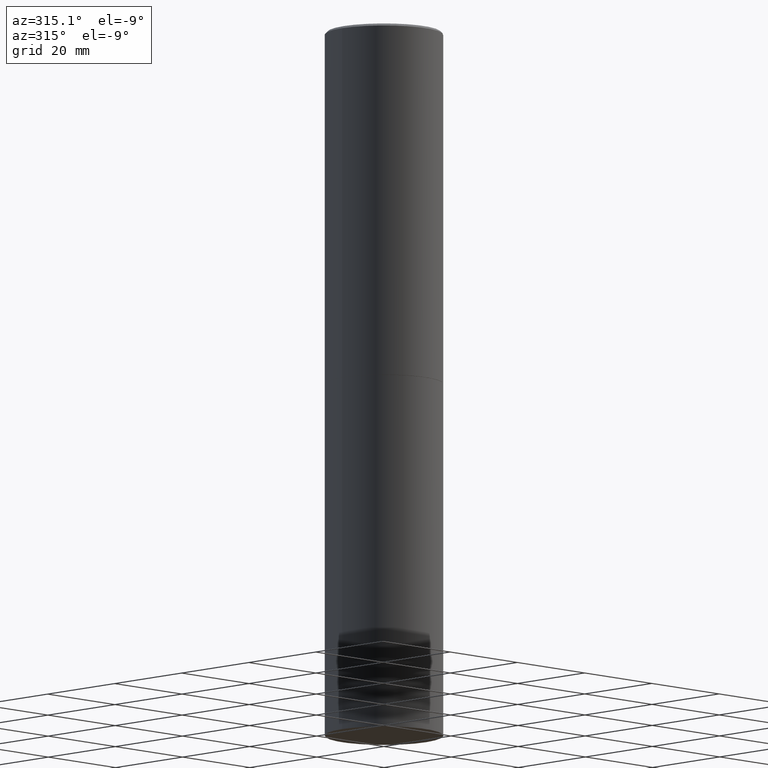
[diagram: clean part render]
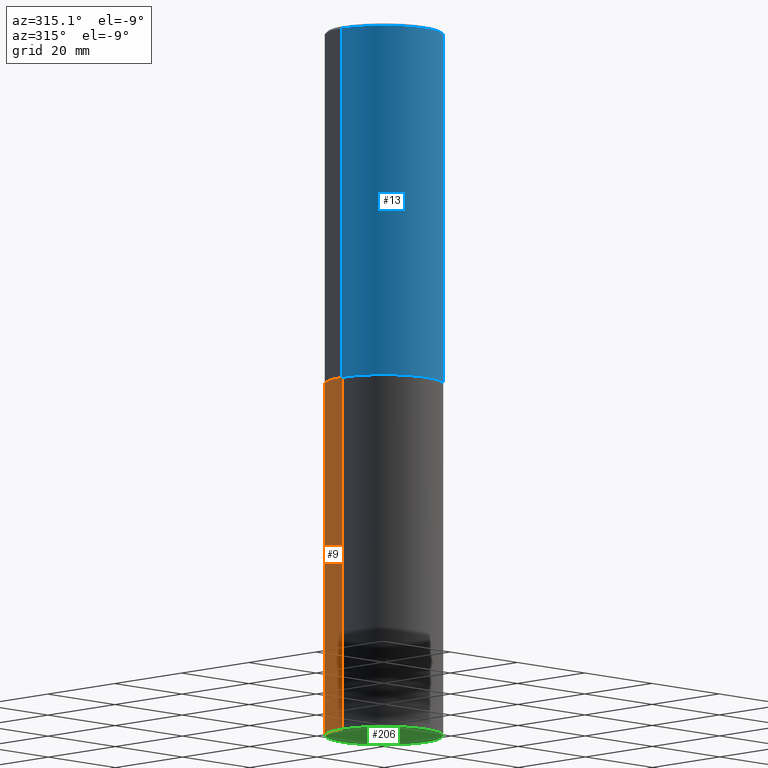
[diagram: same view with three faces highlighted in distinct colors, each labeled with its STEP entity id]
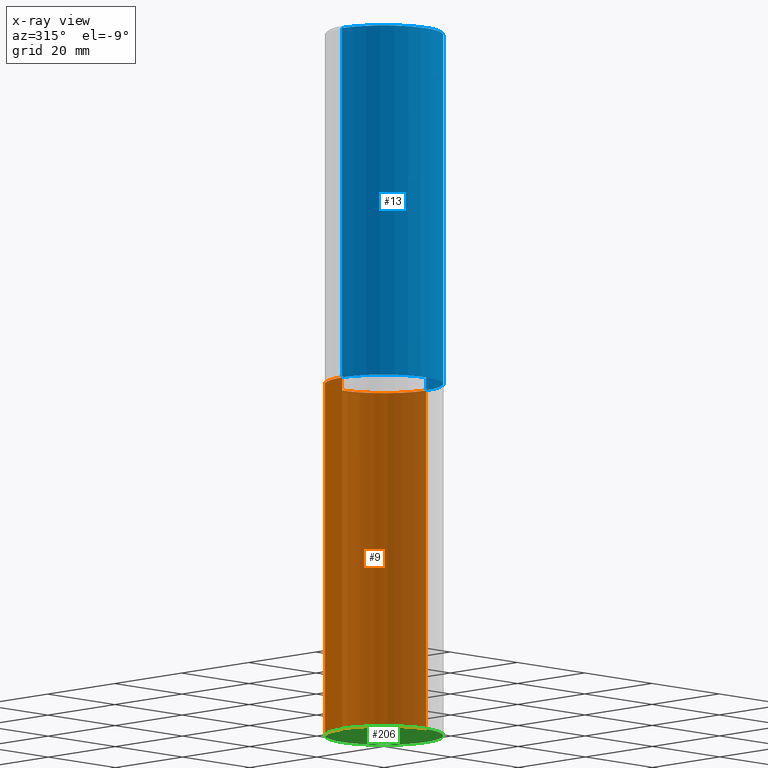
[diagram: x-ray of the same camera — body ghosted, the three highlighted faces saturated]
A machine part, auxiliary view with three faces highlighted in distinct colors.
The next image is the same camera in x-ray (body ghosted, the three faces saturated) — at least one of them is partly hidden behind the body in this view.
Their STEP definitions:

[orange] entity #9 — the highlighted cylindrical surface (partial cylindrical patch) has radius 12.5006 mm, axis along (-0, 0, 1).
#5 = CARTESIAN_POINT ( 'NONE',  ( -0.4921499999999999764, 3.496936074043332897E-15, -2.420853904668951509E-29 ) ) ;
#9 = ADVANCED_FACE ( 'NONE', ( #294 ), #233, .T. ) ;
#31 = EDGE_CURVE ( 'NONE', #257, #288, #344, .T. ) ;
#32 = VECTOR ( 'NONE', #271, 39.37007874015748143 ) ;
#43 = CARTESIAN_POINT ( 'NONE',  ( -0.4921499999999999764, -1.196718392382684217E-14, -5.905499999999999972 ) ) ;
#49 = DIRECTION ( 'NONE',  ( 1.000000000000000000, -6.982962677686265922E-15, 0.000000000000000000 ) ) ;
#65 = ORIENTED_EDGE ( 'NONE', *, *, #278, .F. ) ;
#71 = AXIS2_PLACEMENT_3D ( 'NONE', #241, #177, #49 ) ;
#76 = CARTESIAN_POINT ( 'NONE',  ( 0.4921499999999999764, -2.405560812836148932E-14, -5.905499999999999972 ) ) ;
#80 = DIRECTION ( 'NONE',  ( -2.445468806185136597E-29, 3.491481338843145583E-15, 1.000000000000000000 ) ) ;
#89 = ORIENTED_EDGE ( 'NONE', *, *, #106, .T. ) ;
#106 = EDGE_CURVE ( 'NONE', #288, #227, #198, .T. ) ;
#116 = CIRCLE ( 'NONE', #71, 0.4921499999999999764 ) ;
#118 = DIRECTION ( 'NONE',  ( -2.445468806185136877E-29, 3.491481338843145188E-15, 1.000000000000000000 ) ) ;
#123 = DIRECTION ( 'NONE',  ( 1.000000000000000000, -6.982962677686265922E-15, 4.876176775795935793E-29 ) ) ;
#149 = CARTESIAN_POINT ( 'NONE',  ( 0.4921499999999999764, -3.436665081823295777E-15, 2.399810400207969603E-29 ) ) ;
#150 = DIRECTION ( 'NONE',  ( -2.445468806185136597E-29, 3.491481338843145583E-15, 1.000000000000000000 ) ) ;
#167 = ORIENTED_EDGE ( 'NONE', *, *, #265, .F. ) ;
#171 = LINE ( 'NONE', #149, #32 ) ;
#177 = DIRECTION ( 'NONE',  ( -2.445468806185136597E-29, 3.491481338843145583E-15, 1.000000000000000000 ) ) ;
#198 = LINE ( 'NONE', #5, #290 ) ;
#199 = EDGE_LOOP ( 'NONE', ( #337, #89, #167, #65 ) ) ;
#227 = VERTEX_POINT ( 'NONE', #247 ) ;
#233 = CYLINDRICAL_SURFACE ( 'NONE', #307, 0.4921499999999999764 ) ;
#241 = CARTESIAN_POINT ( 'NONE',  ( 7.220735744022852519E-29, -1.030929694920215502E-14, -2.952700000000000102 ) ) ;
#247 = CARTESIAN_POINT ( 'NONE',  ( -0.4921499999999999764, -1.196718392382684217E-14, -2.952700000000000102 ) ) ;
#257 = VERTEX_POINT ( 'NONE', #76 ) ;
#265 = EDGE_CURVE ( 'NONE', #281, #227, #116, .T. ) ;
#271 = DIRECTION ( 'NONE',  ( -2.445468806185136877E-29, 3.491481338843145188E-15, 1.000000000000000000 ) ) ;
#278 = EDGE_CURVE ( 'NONE', #257, #281, #171, .T. ) ;
#281 = VERTEX_POINT ( 'NONE', #298 ) ;
#288 = VERTEX_POINT ( 'NONE', #43 ) ;
#290 = VECTOR ( 'NONE', #118, 39.37007874015748143 ) ;
#294 = FACE_OUTER_BOUND ( 'NONE', #199, .T. ) ;
#298 = CARTESIAN_POINT ( 'NONE',  ( 0.4921499999999999764, -1.374596203102545079E-14, -2.952700000000000102 ) ) ;
#307 = AXIS2_PLACEMENT_3D ( 'NONE', #348, #80, #123 ) ;
#327 = DIRECTION ( 'NONE',  ( 1.000000000000000000, -6.982962677686265922E-15, 0.000000000000000000 ) ) ;
#337 = ORIENTED_EDGE ( 'NONE', *, *, #31, .T. ) ;
#344 = CIRCLE ( 'NONE', #350, 0.4921499999999999764 ) ;
#348 = CARTESIAN_POINT ( 'NONE',  ( 0.000000000000000000, 0.000000000000000000, 0.000000000000000000 ) ) ;
#350 = AXIS2_PLACEMENT_3D ( 'NONE', #354, #150, #327 ) ;
#354 = CARTESIAN_POINT ( 'NONE',  ( 1.444171603492632270E-28, -2.061894304653819197E-14, -5.905499999999999972 ) ) ;

[blue] entity #13 — the highlighted cylindrical surface (partial cylindrical patch) has radius 12.5006 mm, axis along (-0, 0, 1).
#8 = DIRECTION ( 'NONE',  ( -2.445468806185136877E-29, 3.491481338843145188E-15, 1.000000000000000000 ) ) ;
#13 = ADVANCED_FACE ( 'NONE', ( #272 ), #148, .T. ) ;
#42 = DIRECTION ( 'NONE',  ( 1.000000000000000000, -6.982962677686265922E-15, 0.000000000000000000 ) ) ;
#47 = AXIS2_PLACEMENT_3D ( 'NONE', #355, #72, #214 ) ;
#70 = CIRCLE ( 'NONE', #282, 0.4921499999999999764 ) ;
#72 = DIRECTION ( 'NONE',  ( -2.445468806185136597E-29, 3.491481338843145583E-15, 1.000000000000000000 ) ) ;
#74 = EDGE_CURVE ( 'NONE', #169, #92, #70, .T. ) ;
#92 = VERTEX_POINT ( 'NONE', #230 ) ;
#93 = DIRECTION ( 'NONE',  ( 1.000000000000000000, -6.982962677686265922E-15, 4.876176775795935793E-29 ) ) ;
#98 = CARTESIAN_POINT ( 'NONE',  ( -0.4921499999999999764, -1.690881473276754954E-15, -2.951700000000000212 ) ) ;
#99 = AXIS2_PLACEMENT_3D ( 'NONE', #263, #210, #93 ) ;
#115 = ORIENTED_EDGE ( 'NONE', *, *, #74, .T. ) ;
#124 = EDGE_CURVE ( 'NONE', #92, #343, #221, .T. ) ;
#146 = CARTESIAN_POINT ( 'NONE',  ( -0.4921499999999996988, 3.366835455046430506E-15, -0.02000000000000009409 ) ) ;
#147 = DIRECTION ( 'NONE',  ( -2.445468806185136877E-29, 3.491481338843145188E-15, 1.000000000000000000 ) ) ;
#148 = CYLINDRICAL_SURFACE ( 'NONE', #99, 0.4921499999999998098 ) ;
#160 = CARTESIAN_POINT ( 'NONE',  ( 0.4921499999999996988, -3.446223716380120377E-15, -0.02000000000000009409 ) ) ;
#162 = EDGE_CURVE ( 'NONE', #260, #343, #321, .T. ) ;
#169 = VERTEX_POINT ( 'NONE', #98 ) ;
#172 = VECTOR ( 'NONE', #147, 39.37007874015748143 ) ;
#178 = LINE ( 'NONE', #303, #297 ) ;
#210 = DIRECTION ( 'NONE',  ( -2.445468806185136597E-29, 3.491481338843145583E-15, 1.000000000000000000 ) ) ;
#214 = DIRECTION ( 'NONE',  ( 1.000000000000000000, -6.982962677686265922E-15, 0.000000000000000000 ) ) ;
#217 = ORIENTED_EDGE ( 'NONE', *, *, #313, .F. ) ;
#218 = CARTESIAN_POINT ( 'NONE',  ( 0.4921499999999998098, -3.436665081823294593E-15, 2.399810400207968762E-29 ) ) ;
#221 = LINE ( 'NONE', #218, #172 ) ;
#230 = CARTESIAN_POINT ( 'NONE',  ( 0.4921499999999999764, -1.374247054968660936E-14, -2.951700000000000212 ) ) ;
#246 = CARTESIAN_POINT ( 'NONE',  ( 7.218290275216666916E-29, -1.030580546786331359E-14, -2.951700000000000212 ) ) ;
#260 = VERTEX_POINT ( 'NONE', #146 ) ;
#263 = CARTESIAN_POINT ( 'NONE',  ( 0.000000000000000000, 0.000000000000000000, 0.000000000000000000 ) ) ;
#269 = ORIENTED_EDGE ( 'NONE', *, *, #162, .F. ) ;
#272 = FACE_OUTER_BOUND ( 'NONE', #312, .T. ) ;
#282 = AXIS2_PLACEMENT_3D ( 'NONE', #246, #295, #42 ) ;
#295 = DIRECTION ( 'NONE',  ( -2.445468806185136597E-29, 3.491481338843145583E-15, 1.000000000000000000 ) ) ;
#297 = VECTOR ( 'NONE', #8, 39.37007874015748143 ) ;
#303 = CARTESIAN_POINT ( 'NONE',  ( -0.4921499999999998098, 3.496936074043331714E-15, -2.420853904668950949E-29 ) ) ;
#312 = EDGE_LOOP ( 'NONE', ( #217, #115, #346, #269 ) ) ;
#313 = EDGE_CURVE ( 'NONE', #169, #260, #178, .T. ) ;
#321 = CIRCLE ( 'NONE', #47, 0.4921499999999996988 ) ;
#343 = VERTEX_POINT ( 'NONE', #160 ) ;
#346 = ORIENTED_EDGE ( 'NONE', *, *, #124, .T. ) ;
#355 = CARTESIAN_POINT ( 'NONE',  ( 4.890937612370296805E-31, -6.982962677686323656E-17, -0.02000000000000009409 ) ) ;

[green] entity #206 — the highlighted planar face has unit normal (0, -0, -1).
#14 = DIRECTION ( 'NONE',  ( -1.000000000000000000, 6.982962677686265922E-15, -4.876176775795935793E-29 ) ) ;
#31 = EDGE_CURVE ( 'NONE', #257, #288, #344, .T. ) ;
#40 = PLANE ( 'NONE',  #145 ) ;
#43 = CARTESIAN_POINT ( 'NONE',  ( -0.4921499999999999764, -1.196718392382684217E-14, -5.905499999999999972 ) ) ;
#46 = CARTESIAN_POINT ( 'NONE',  ( 3.436665081823440533E-15, 0.4921499999999793262, -5.905500000000001748 ) ) ;
#68 = DIRECTION ( 'NONE',  ( -2.445468806185136597E-29, 3.491481338843145583E-15, 1.000000000000000000 ) ) ;
#73 = CARTESIAN_POINT ( 'NONE',  ( 1.444171603492632270E-28, -2.061894304653819197E-14, -5.905499999999999972 ) ) ;
#76 = CARTESIAN_POINT ( 'NONE',  ( 0.4921499999999999764, -2.405560812836148932E-14, -5.905499999999999972 ) ) ;
#113 = CIRCLE ( 'NONE', #237, 0.4921499999999999764 ) ;
#143 = ORIENTED_EDGE ( 'NONE', *, *, #252, .F. ) ;
#145 = AXIS2_PLACEMENT_3D ( 'NONE', #46, #333, #14 ) ;
#150 = DIRECTION ( 'NONE',  ( -2.445468806185136597E-29, 3.491481338843145583E-15, 1.000000000000000000 ) ) ;
#152 = EDGE_LOOP ( 'NONE', ( #315, #143 ) ) ;
#174 = DIRECTION ( 'NONE',  ( 1.000000000000000000, -6.982962677686265922E-15, 0.000000000000000000 ) ) ;
#206 = ADVANCED_FACE ( 'NONE', ( #330 ), #40, .T. ) ;
#237 = AXIS2_PLACEMENT_3D ( 'NONE', #73, #68, #174 ) ;
#252 = EDGE_CURVE ( 'NONE', #288, #257, #113, .T. ) ;
#257 = VERTEX_POINT ( 'NONE', #76 ) ;
#288 = VERTEX_POINT ( 'NONE', #43 ) ;
#315 = ORIENTED_EDGE ( 'NONE', *, *, #31, .F. ) ;
#327 = DIRECTION ( 'NONE',  ( 1.000000000000000000, -6.982962677686265922E-15, 0.000000000000000000 ) ) ;
#330 = FACE_OUTER_BOUND ( 'NONE', #152, .T. ) ;
#333 = DIRECTION ( 'NONE',  ( 2.438088387897960049E-29, -3.491481338843145188E-15, -1.000000000000000000 ) ) ;
#344 = CIRCLE ( 'NONE', #350, 0.4921499999999999764 ) ;
#350 = AXIS2_PLACEMENT_3D ( 'NONE', #354, #150, #327 ) ;
#354 = CARTESIAN_POINT ( 'NONE',  ( 1.444171603492632270E-28, -2.061894304653819197E-14, -5.905499999999999972 ) ) ;